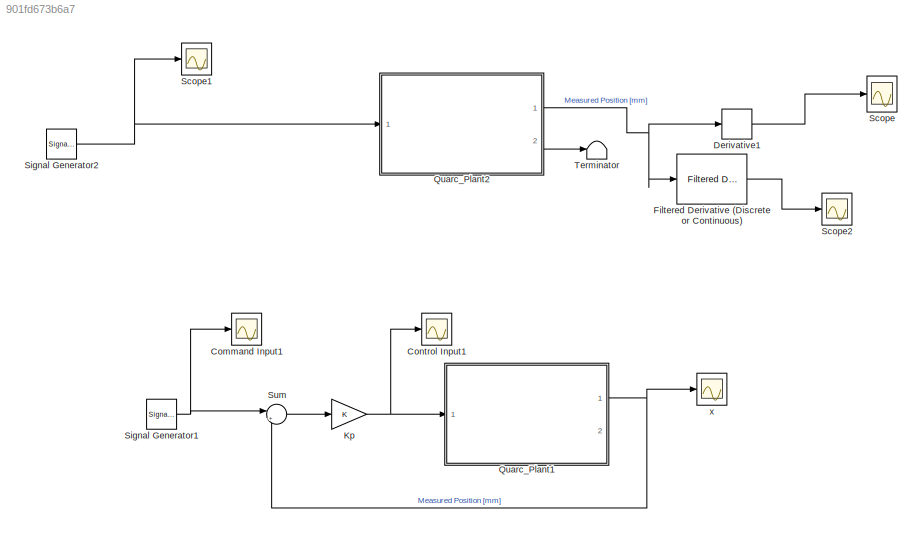
MODEL slx_901fd673b6a7
KIND model
CONFIG AbsTol = auto
CONFIG EnableMultiTasking = on
CONFIG FixedStep = 0.001
CONFIG MaxStep = auto
CONFIG MinStep = auto
CONFIG RelTol = 1e-3
CONFIG SampleTimeConstraint = Unconstrained
CONFIG SolverName = ode1
CONFIG StartTime = 0.0
CONFIG StopTime = inf
WORKSPACE source: mxarray member
WORKSPACE Kd = 0.04611
WORKSPACE Ki = 124.3945
WORKSPACE Kp = 2.1998
BLOCK [Scope] Command Input1
  Floating = off
  NumInputPorts = 1
  Ports = [1]
  ScopeSpecificationString = Simulink.scopes.TimeScopeBlockCfg('CurrentConfiguration', extmgr.ConfigurationSet(extmgr.Configuration('Core','General UI',true),extmgr.Configuration('Core','Source UI',true),extmgr.Configuration('Sources','WiredSimulink',true,'DataLoggingVariableName','input43a500','DataLogging',true,'DataLoggingSaveFormat','Array'),extmgr.Configuration('Visuals','Time Domain',true,'SerializedDisplays',{struct('M...<+1459ch>
BLOCK [Scope] Control Input1
  Floating = off
  NumInputPorts = 1
  Ports = [1]
  ScopeSpecificationString = Simulink.scopes.TimeScopeBlockCfg('CurrentConfiguration', extmgr.ConfigurationSet(extmgr.Configuration('Core','General UI',true),extmgr.Configuration('Core','Source UI',true),extmgr.Configuration('Sources','WiredSimulink',true,'DataLoggingVariableName','Pctrlf500','DataLogging',true,'DataLoggingSaveFormat','Array'),extmgr.Configuration('Visuals','Time Domain',true,'SerializedDisplays',{struct('Min...<+1464ch>
BLOCK [Derivative] Derivative1
  Commented = on
BLOCK [Reference] Filtered Derivative (Discrete or Continuous)  REF=eeGeneralControl/Filtered Derivative
(Discrete or Continuous)
  Commented = on
  Ports = [1, 1]
  SourceBlock = eeGeneralControl/Filtered Derivative\n(Discrete or Continuous)
  SourceProductBaseCode = PS
  SourceType = Filtered Derivative (Discrete or Continuous)
BLOCK [Gain] Kp
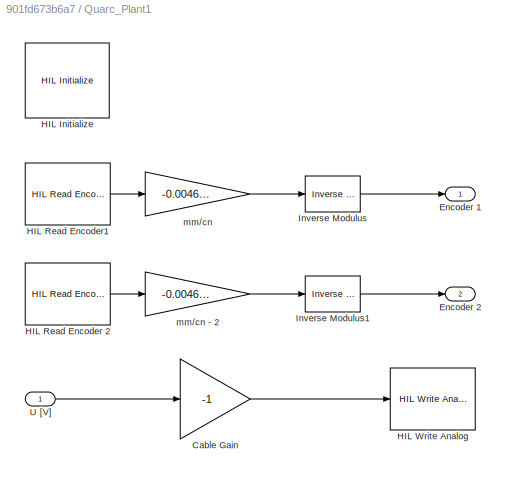
BLOCK [SubSystem] Quarc_Plant1
  Ports = [1, 2]
  RequestExecContextInheritance = off
BLOCK [Gain] Quarc_Plant1/Cable Gain
  Gain = -1
BLOCK [Outport] Quarc_Plant1/Encoder 1
BLOCK [Outport] Quarc_Plant1/Encoder 2
  Port = 2
BLOCK [Reference] Quarc_Plant1/HIL Initialize  REF=quarc_library/Data Acquisition/Generic/Configuration/HIL Initialize
  AttributesFormatString = %<object_name> (%<board_type>-%<board_number>)
  Ports = []
  Priority = -99
  SourceBlock = quarc_library/Data Acquisition/Generic/Configuration/HIL Initialize
  SourceProductName = QUARC Targets
  SourceType = HIL Initialize
  UserDataPersistent = on
BLOCK [Reference] Quarc_Plant1/HIL Read Encoder 2  REF=quarc_library/Data Acquisition/Generic/Immediate I//O/HIL Read Encoder
  AttributesFormatString = (%<object_name>)
  Ports = [0, 1]
  SourceBlock = quarc_library/Data Acquisition/Generic/Immediate I//O/HIL Read Encoder
  SourceProductName = QUARC Targets
  SourceType = HIL Read Encoder
  UserDataPersistent = on
BLOCK [Reference] Quarc_Plant1/HIL Read Encoder1  REF=quarc_library/Data Acquisition/Generic/Immediate I//O/HIL Read Encoder
  AttributesFormatString = (%<object_name>)
  Ports = [0, 1]
  SourceBlock = quarc_library/Data Acquisition/Generic/Immediate I//O/HIL Read Encoder
  SourceProductName = QUARC Targets
  SourceType = HIL Read Encoder
  UserDataPersistent = on
BLOCK [Reference] Quarc_Plant1/HIL Write Analog  REF=quarc_library/Data Acquisition/Generic/Immediate I//O/HIL Write Analog
  AttributesFormatString = (%<object_name>)
  Ports = [1]
  SourceBlock = quarc_library/Data Acquisition/Generic/Immediate I//O/HIL Write Analog
  SourceProductName = QUARC Targets
  SourceType = HIL Write Analog
  Tag = unassigned
  UserDataPersistent = on
BLOCK [Reference] Quarc_Plant1/Inverse Modulus  REF=quarc_library/Discontinuities/Inverse
Modulus
  Ports = [1, 1]
  SourceBlock = quarc_library/Discontinuities/Inverse\nModulus
  SourceProductName = QUARC Targets
  SourceType = Inverse Modulus
BLOCK [Reference] Quarc_Plant1/Inverse Modulus1  REF=quarc_library/Discontinuities/Inverse
Modulus
  Ports = [1, 1]
  SourceBlock = quarc_library/Discontinuities/Inverse\nModulus
  SourceProductName = QUARC Targets
  SourceType = Inverse Modulus
BLOCK [Inport] Quarc_Plant1/U [V]
BLOCK [Gain] Quarc_Plant1/mm//cn
  Gain = -0.0046592
BLOCK [Gain] Quarc_Plant1/mm//cn - 2
  Gain = -0.0046592
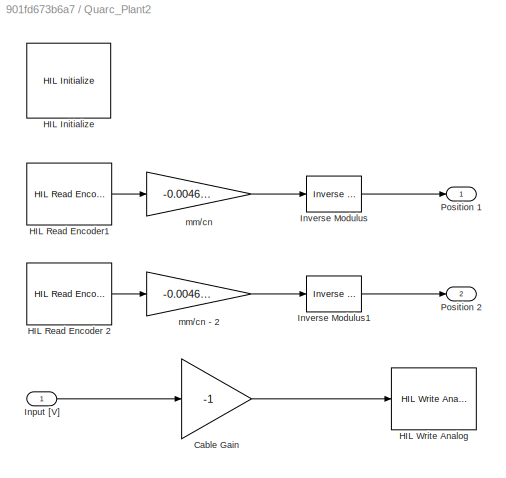
BLOCK [SubSystem] Quarc_Plant2
  Commented = on
  Ports = [1, 2]
  RequestExecContextInheritance = off
BLOCK [Gain] Quarc_Plant2/Cable Gain
  Gain = -1
BLOCK [Reference] Quarc_Plant2/HIL Initialize  REF=quarc_library/Data Acquisition/Generic/Configuration/HIL Initialize
  AttributesFormatString = %<object_name> (%<board_type>-%<board_number>)
  Ports = []
  Priority = -99
  SourceBlock = quarc_library/Data Acquisition/Generic/Configuration/HIL Initialize
  SourceProductName = QUARC Targets
  SourceType = HIL Initialize
  UserDataPersistent = on
BLOCK [Reference] Quarc_Plant2/HIL Read Encoder 2  REF=quarc_library/Data Acquisition/Generic/Immediate I//O/HIL Read Encoder
  AttributesFormatString = (%<object_name>)
  Ports = [0, 1]
  SourceBlock = quarc_library/Data Acquisition/Generic/Immediate I//O/HIL Read Encoder
  SourceProductName = QUARC Targets
  SourceType = HIL Read Encoder
  UserDataPersistent = on
BLOCK [Reference] Quarc_Plant2/HIL Read Encoder1  REF=quarc_library/Data Acquisition/Generic/Immediate I//O/HIL Read Encoder
  AttributesFormatString = (%<object_name>)
  Ports = [0, 1]
  SourceBlock = quarc_library/Data Acquisition/Generic/Immediate I//O/HIL Read Encoder
  SourceProductName = QUARC Targets
  SourceType = HIL Read Encoder
  UserDataPersistent = on
BLOCK [Reference] Quarc_Plant2/HIL Write Analog  REF=quarc_library/Data Acquisition/Generic/Immediate I//O/HIL Write Analog
  AttributesFormatString = (%<object_name>)
  Ports = [1]
  SourceBlock = quarc_library/Data Acquisition/Generic/Immediate I//O/HIL Write Analog
  SourceProductName = QUARC Targets
  SourceType = HIL Write Analog
  Tag = unassigned
  UserDataPersistent = on
BLOCK [Inport] Quarc_Plant2/Input [V]
BLOCK [Reference] Quarc_Plant2/Inverse Modulus  REF=quarc_library/Discontinuities/Inverse
Modulus
  Ports = [1, 1]
  SourceBlock = quarc_library/Discontinuities/Inverse\nModulus
  SourceProductName = QUARC Targets
  SourceType = Inverse Modulus
BLOCK [Reference] Quarc_Plant2/Inverse Modulus1  REF=quarc_library/Discontinuities/Inverse
Modulus
  Ports = [1, 1]
  SourceBlock = quarc_library/Discontinuities/Inverse\nModulus
  SourceProductName = QUARC Targets
  SourceType = Inverse Modulus
BLOCK [Outport] Quarc_Plant2/Position 1
BLOCK [Outport] Quarc_Plant2/Position 2
  Port = 2
BLOCK [Gain] Quarc_Plant2/mm//cn
  Gain = -0.0046592
BLOCK [Gain] Quarc_Plant2/mm//cn - 2
  Gain = -0.0046592
BLOCK [Scope] Scope
  Commented = on
  Floating = off
  NameLocation = right
  NumInputPorts = 1
  Ports = [1]
  ScopeSpecificationString = Simulink.scopes.TimeScopeBlockCfg('CurrentConfiguration', extmgr.ConfigurationSet(extmgr.Configuration('Core','General UI',true),extmgr.Configuration('Core','Source UI',true),extmgr.Configuration('Sources','WiredSimulink',true,'DataLoggingVariableName','rawOutput','DataLogging',true,'DataLoggingSaveFormat','Array'),extmgr.Configuration('Visuals','Time Domain',true,'SerializedDisplays',{struct('Min...<+1566ch>
BLOCK [Scope] Scope1
  Commented = on
  Floating = off
  NumInputPorts = 1
  Ports = [1]
  ScopeSpecificationString = Simulink.scopes.TimeScopeBlockCfg('CurrentConfiguration', extmgr.ConfigurationSet(extmgr.Configuration('Core','General UI',true),extmgr.Configuration('Core','Source UI',true),extmgr.Configuration('Sources','WiredSimulink',true,'DataLoggingVariableName','ScopeData2'),extmgr.Configuration('Visuals','Time Domain',true,'SerializedDisplays',{struct('MinYLimReal','-1.875','MaxYLimReal','1.875','YLabelRe...<+1391ch>
BLOCK [Scope] Scope2
  Commented = on
  Floating = off
  NumInputPorts = 1
  Ports = [1]
  ScopeSpecificationString = Simulink.scopes.TimeScopeBlockCfg('CurrentConfiguration', extmgr.ConfigurationSet(extmgr.Configuration('Core','General UI',true),extmgr.Configuration('Core','Source UI',true),extmgr.Configuration('Sources','WiredSimulink',true,'DataLoggingVariableName','LowPass','DataLogging',true,'DataLoggingSaveFormat','Array'),extmgr.Configuration('Visuals','Time Domain',true,'SerializedDisplays',{struct('MinYL...<+1488ch>
BLOCK [SignalGenerator] Signal Generator1
  Amplitude = 2
  Frequency = 50
  Ports = [0, 1]
BLOCK [SignalGenerator] Signal Generator2
  Amplitude = 1.5
  Commented = on
  Ports = [0, 1]
  WaveForm = square
BLOCK [Sum] Sum
  Inputs = |+-
  Ports = [2, 1]
BLOCK [Terminator] Terminator
  Commented = on
BLOCK [Scope] x
  Floating = off
  NumInputPorts = 1
  Ports = [1]
  ScopeSpecificationString = Simulink.scopes.TimeScopeBlockCfg('CurrentConfiguration', extmgr.ConfigurationSet(extmgr.Configuration('Core','General UI',true),extmgr.Configuration('Core','Source UI',true),extmgr.Configuration('Sources','WiredSimulink',true,'DataLoggingVariableName','output43f500','DataLogging',true,'DataLoggingSaveFormat','Array'),extmgr.Configuration('Visuals','Time Domain',true,'SerializedDisplays',{struct('...<+1490ch>
LINE Derivative1:1 -> Scope:1
LINE Filtered Derivative (Discrete or Continuous):1 -> Scope2:1
NET Kp:1 -> Control Input1:1, Quarc_Plant1:1
LINE Quarc_Plant1/Cable Gain:1 -> Quarc_Plant1/HIL Write Analog:1
LINE Quarc_Plant1/HIL Read Encoder 2:1 -> Quarc_Plant1/mm//cn - 2:1
LINE Quarc_Plant1/HIL Read Encoder1:1 -> Quarc_Plant1/mm//cn:1
LINE Quarc_Plant1/Inverse Modulus1:1 -> Quarc_Plant1/Encoder 2:1
LINE Quarc_Plant1/Inverse Modulus:1 -> Quarc_Plant1/Encoder 1:1
LINE Quarc_Plant1/U [V]:1 -> Quarc_Plant1/Cable Gain:1
LINE Quarc_Plant1/mm//cn - 2:1 -> Quarc_Plant1/Inverse Modulus1:1
LINE Quarc_Plant1/mm//cn:1 -> Quarc_Plant1/Inverse Modulus:1
NET Quarc_Plant1:1 -> Sum:2, x:1
LINE Quarc_Plant2/Cable Gain:1 -> Quarc_Plant2/HIL Write Analog:1
LINE Quarc_Plant2/HIL Read Encoder 2:1 -> Quarc_Plant2/mm//cn - 2:1
LINE Quarc_Plant2/HIL Read Encoder1:1 -> Quarc_Plant2/mm//cn:1
LINE Quarc_Plant2/Input [V]:1 -> Quarc_Plant2/Cable Gain:1
LINE Quarc_Plant2/Inverse Modulus1:1 -> Quarc_Plant2/Position 2:1
LINE Quarc_Plant2/Inverse Modulus:1 -> Quarc_Plant2/Position 1:1
LINE Quarc_Plant2/mm//cn - 2:1 -> Quarc_Plant2/Inverse Modulus1:1
LINE Quarc_Plant2/mm//cn:1 -> Quarc_Plant2/Inverse Modulus:1
NET Quarc_Plant2:1 -> Derivative1:1, Filtered Derivative (Discrete or Continuous):1
LINE Quarc_Plant2:2 -> Terminator:1
NET Signal Generator1:1 -> Command Input1:1, Sum:1
NET Signal Generator2:1 -> Quarc_Plant2:1, Scope1:1
LINE Sum:1 -> Kp:1
note: NET lines group one-source signal fan-out (src -> all destinations, sorted); 1:1 wires keep LINE
